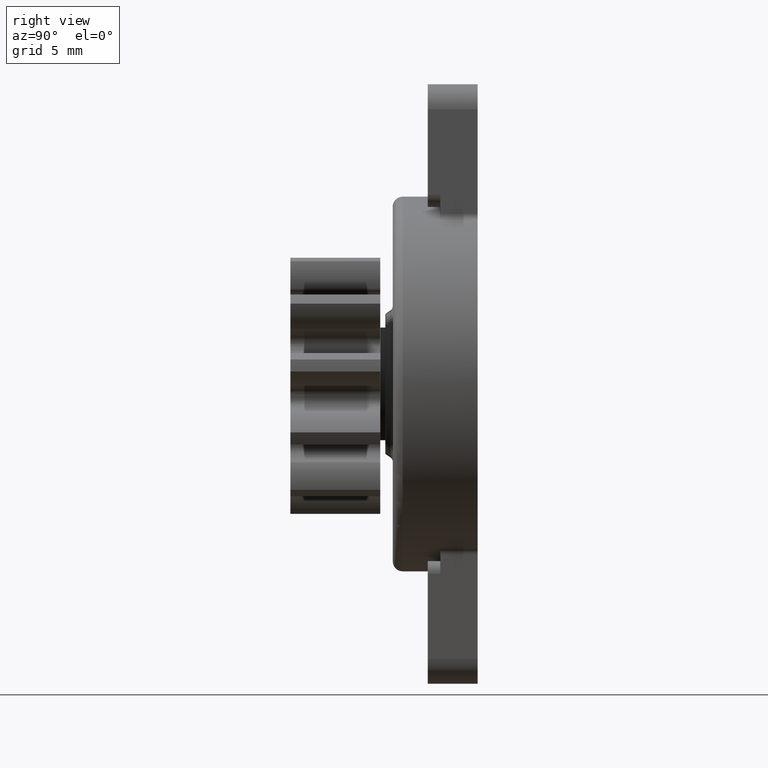
[diagram: clean part render]
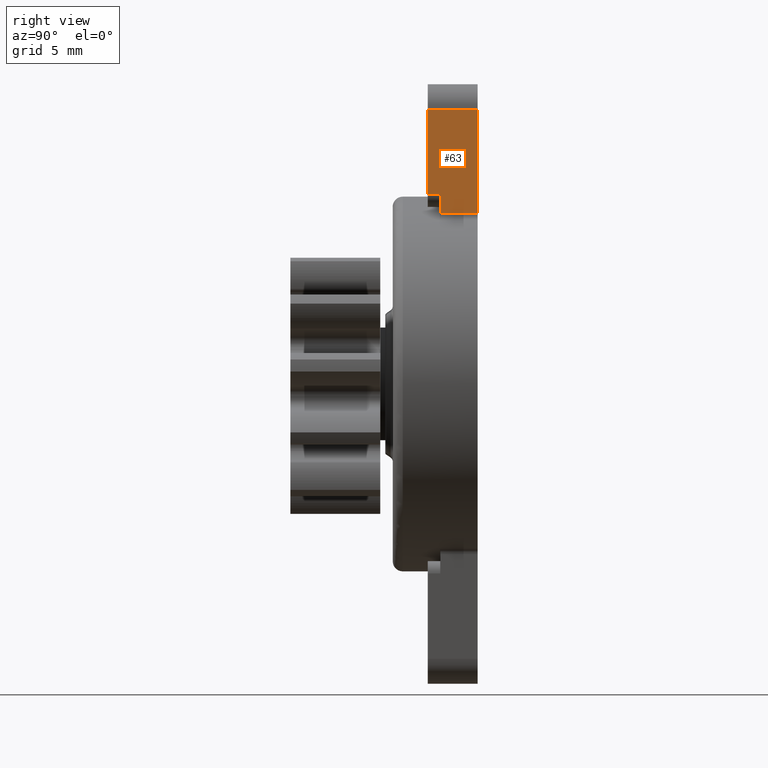
[diagram: same view with one face highlighted and labeled with its STEP entity id]
A machine part, right view. The second image highlights one B-rep face of the part: STEP entity #63.
In plain terms, the highlighted planar face has unit normal (1, 0, 0).
Its self-contained STEP definition (entity closure, byte-faithful):
#63=ADVANCED_FACE('',(#921),#920,.T.);
#920=PLANE('',#7256);
#921=FACE_OUTER_BOUND('',#7257,.T.);
#7253=CARTESIAN_POINT('',(3.50000000000E+00,-2.20000000000E+00,1.14188244635E+01));
#7254=DIRECTION('',(1.00000000000E+00,0.00000000000E+00,0.00000000000E+00));
#7255=DIRECTION('',(0.00000000000E+00,0.00000000000E+00,-1.00000000000E+00));
#7256=AXIS2_PLACEMENT_3D('',#7253,#7254,#7255);
#7257=EDGE_LOOP('',(#10592,#10593,#10594,#10595,#10596,#10597));
#10592=ORIENTED_EDGE('',*,*,#14347,.F.);
#10593=ORIENTED_EDGE('',*,*,#14360,.T.);
#10594=ORIENTED_EDGE('',*,*,#14329,.T.);
#10595=ORIENTED_EDGE('',*,*,#14366,.T.);
#10596=ORIENTED_EDGE('',*,*,#14279,.F.);
#10597=ORIENTED_EDGE('',*,*,#14367,.F.);
#14279=EDGE_CURVE('',#16211,#16218,#16219,.T.);
#14329=EDGE_CURVE('',#16560,#16553,#16561,.T.);
#14347=EDGE_CURVE('',#16679,#16686,#16687,.T.);
#14360=EDGE_CURVE('',#16679,#16560,#16768,.T.);
#14366=EDGE_CURVE('',#16553,#16218,#16804,.T.);
#14367=EDGE_CURVE('',#16686,#16211,#16810,.T.);
#16211=VERTEX_POINT('',#28920);
#16218=VERTEX_POINT('',#28925);
#16219=LINE('',#28926,#28927);
#16553=VERTEX_POINT('',#29141);
#16560=VERTEX_POINT('',#29146);
#16561=LINE('',#29147,#29148);
#16679=VERTEX_POINT('',#29227);
#16686=VERTEX_POINT('',#29232);
#16687=LINE('',#29233,#29234);
#16768=LINE('',#29278,#29279);
#16804=LINE('',#29296,#29297);
#16810=LINE('',#29299,#29300);
#28920=CARTESIAN_POINT('',(3.50000000000E+00,-2.00000000000E+00,7.58711540000E+00));
#28925=CARTESIAN_POINT('',(3.50000000000E+00,-2.00000000000E+00,1.10000000000E+01));
#28926=CARTESIAN_POINT('',(3.50000000000E+00,-2.00000000000E+00,7.58711540000E+00));
#28927=VECTOR('',#28928,3.41288460000E+00);
#28928=DIRECTION('',(0.00000000000E+00,0.00000000000E+00,1.00000000000E+00));
#29141=CARTESIAN_POINT('',(3.50000000000E+00,0.00000000000E+00,1.10000000000E+01));
#29146=CARTESIAN_POINT('',(3.50000000000E+00,0.00000000000E+00,6.81175536540E+00));
#29147=CARTESIAN_POINT('',(3.50000000000E+00,0.00000000000E+00,6.81175536540E+00));
#29148=VECTOR('',#29149,4.18824463460E+00);
#29149=DIRECTION('',(0.00000000000E+00,0.00000000000E+00,1.00000000000E+00));
#29227=CARTESIAN_POINT('',(3.50000000000E+00,-1.50000000000E+00,6.81175536540E+00));
#29232=CARTESIAN_POINT('',(3.50000000000E+00,-1.50000000000E+00,7.58711540000E+00));
#29233=CARTESIAN_POINT('',(3.50000000000E+00,-1.50000000000E+00,6.81175536540E+00));
#29234=VECTOR('',#29235,7.75360034605E-01);
#29235=DIRECTION('',(0.00000000000E+00,0.00000000000E+00,1.00000000000E+00));
#29278=CARTESIAN_POINT('',(3.50000000000E+00,-1.50000000000E+00,6.81175536540E+00));
#29279=VECTOR('',#29280,1.50000000000E+00);
#29280=DIRECTION('',(0.00000000000E+00,1.00000000000E+00,0.00000000000E+00));
#29296=CARTESIAN_POINT('',(3.50000000000E+00,0.00000000000E+00,1.10000000000E+01));
#29297=VECTOR('',#29298,2.00000000000E+00);
#29298=DIRECTION('',(0.00000000000E+00,-1.00000000000E+00,0.00000000000E+00));
#29299=CARTESIAN_POINT('',(3.50000000000E+00,-1.50000000000E+00,7.58711540000E+00));
#29300=VECTOR('',#29301,5.00000000000E-01);
#29301=DIRECTION('',(0.00000000000E+00,-1.00000000000E+00,0.00000000000E+00));